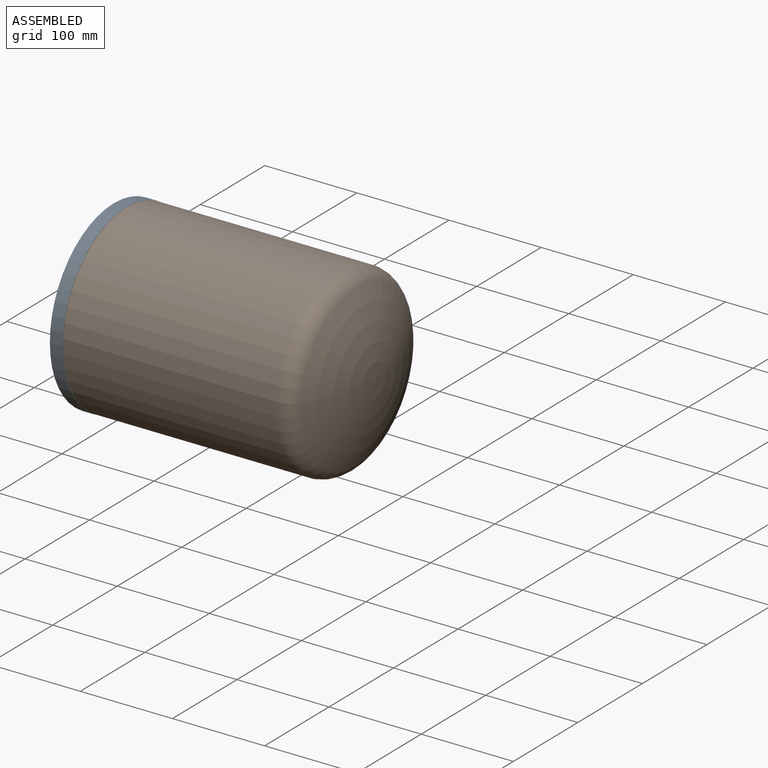
[diagram: assembled view]
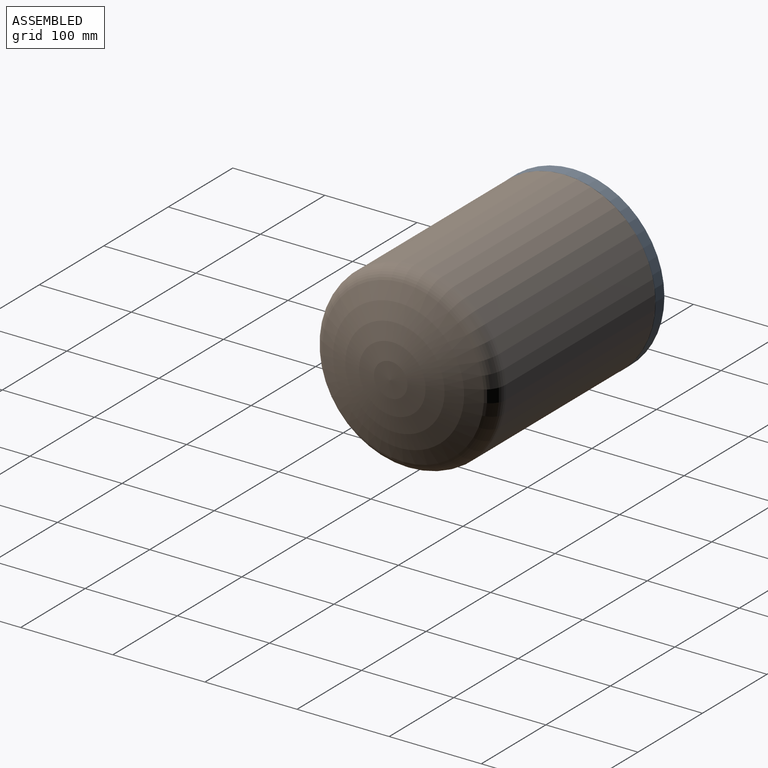
[diagram: assembled view, second angle]
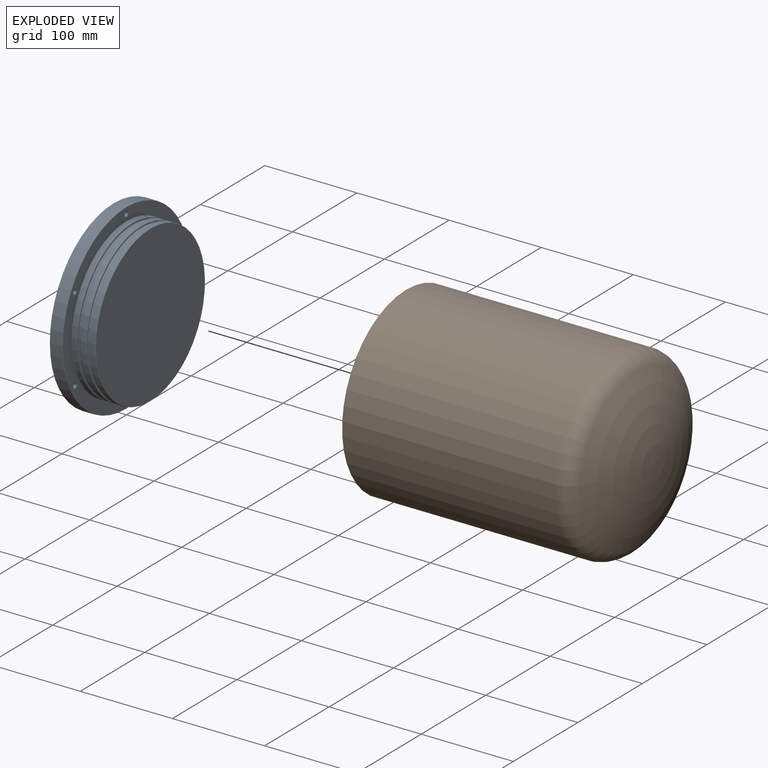
[diagram: exploded view]
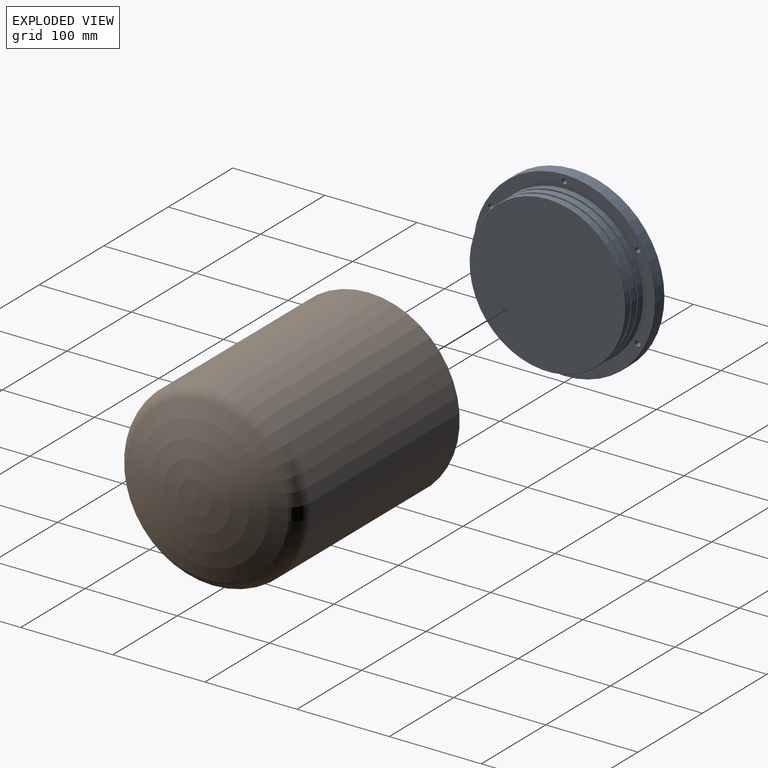
[diagram: exploded view, second angle]
ASSEMBLY  parts=2 mates=3
PART A: 43 faces, bbox 40x214.3x214.3 mm
  f0: cone r=2.75mm half-angle=45deg, axis (-1,0,0), area 11.1mm2, adj f2,f25
  f1: cone r=2.25mm half-angle=45deg, axis (1,0,0), area 11.1mm2, adj f2,f21
  f2: cylinder r=2.25mm len=13mm, axis (-1,0,0), area 183.8mm2, adj f0,f1
  f3: cone r=2.75mm half-angle=45deg, axis (-1,0,0), area 11.1mm2, adj f5,f25
  f4: cone r=2.25mm half-angle=45deg, axis (1,0,0), area 11.1mm2, adj f5,f21
  f5: cylinder r=2.25mm len=13mm, axis (-1,0,0), area 183.8mm2, adj f3,f4
  f6: cone r=2.75mm half-angle=45deg, axis (-1,0,0), area 11.1mm2, adj f8,f25
  f7: cone r=2.25mm half-angle=45deg, axis (1,0,0), area 11.1mm2, adj f8,f21
  f8: cylinder r=2.25mm len=13mm, axis (-1,0,0), area 183.8mm2, adj f6,f7
  f9: cone r=2.75mm half-angle=45deg, axis (-1,0,0), area 11.1mm2, adj f11,f25
  f10: cone r=2.25mm half-angle=45deg, axis (1,0,0), area 11.1mm2, adj f11,f21
  f11: cylinder r=2.25mm len=13mm, axis (-1,0,0), area 183.8mm2, adj f9,f10
  f12: cone r=2.75mm half-angle=45deg, axis (-1,0,0), area 11.1mm2, adj f14,f25
  f13: cone r=2.25mm half-angle=45deg, axis (1,0,0), area 11.1mm2, adj f14,f21
  f14: cylinder r=2.25mm len=13mm, axis (-1,0,0), area 183.8mm2, adj f12,f13
  f15: cylinder r=82.8mm len=165.6mm, axis (1,0,0), area 1368.9mm2, adj f16,f39
  f16: torus R=83.2mm, axis (1,0,0), area 316.5mm2, adj f15,f17
  f17: cone r=84.42mm half-angle=87deg, axis (-1,0,0), area 654.8mm2, adj f16,f18
  f18: torus R=84.4mm, axis (1,0,0), area 323.1mm2, adj f17,f19
  f19: cylinder r=84.8mm len=169.6mm, axis (1,0,0), area 2888.1mm2, adj f18,f20
  f20: torus R=85.2mm, axis (1,0,0), area 335.4mm2, adj f19,f21
  f21: plane 197.2x197.2mm, normal (1,0,0), area 7594.9mm2, adj f1,f4,f7,f10,f13,f20,f22,f41
  f22: torus R=98.6mm, axis (1,0,0), area 390.3mm2, adj f21,f23
  f23: cylinder r=99mm len=198mm, axis (1,0,0), area 8210.9mm2, adj f22,f24
  f24: torus R=98.6mm, axis (1,0,0), area 390.3mm2, adj f23,f25
  f25: plane 197.2x197.2mm, normal (-1,0,0), area 30399.9mm2, adj f0,f3,f6,f9,f12,f24,f42
  f26: plane 168.8x168.8mm, normal (1,0,0), area 22378.7mm2, adj f27
  f27: torus R=84.4mm, axis (1,0,0), area 334.2mm2, adj f26,f28
  f28: cylinder r=84.8mm len=169.6mm, axis (1,0,0), area 2888.1mm2, adj f27,f29
  f29: torus R=84.4mm, axis (1,0,0), area 323.1mm2, adj f28,f30
  f30: cone r=83.18mm half-angle=87deg, axis (1,0,0), area 654.8mm2, adj f29,f31
  f31: torus R=83.2mm, axis (1,0,0), area 316.5mm2, adj f30,f32
  f32: cylinder r=82.8mm len=165.6mm, axis (1,0,0), area 1368.9mm2, adj f31,f33
  f33: torus R=83.2mm, axis (1,0,0), area 316.5mm2, adj f32,f34
  f34: cone r=84.42mm half-angle=87deg, axis (-1,0,0), area 654.8mm2, adj f33,f35
  f35: torus R=84.4mm, axis (1,0,0), area 323.1mm2, adj f34,f36
  f36: cylinder r=84.8mm len=169.6mm, axis (1,0,0), area 3005.5mm2, adj f35,f37
  f37: torus R=84.4mm, axis (1,0,0), area 323.1mm2, adj f36,f38
  f38: cone r=83.18mm half-angle=87deg, axis (1,0,0), area 654.8mm2, adj f37,f39
  f39: torus R=83.2mm, axis (1,0,0), area 316.5mm2, adj f15,f38
  f40: cylinder r=2.25mm len=13mm, axis (-1,0,0), area 183.8mm2, adj f41,f42
  f41: cone r=2.25mm half-angle=45deg, axis (1,0,0), area 11.1mm2, adj f21,f40
  f42: cone r=2.75mm half-angle=45deg, axis (-1,0,0), area 11.1mm2, adj f25,f40
PART B: 29 faces, bbox 270x214.3x214.3 mm
  f0: cone r=2.25mm half-angle=45deg, axis (-1,0,0), area 11.1mm2, adj f2,f18
  f1: cone r=0mm half-angle=59deg, axis (-1,0,0), area 18.6mm2, adj f2
  f2: cylinder r=2.25mm len=11.5mm, axis (-1,0,0), area 162.6mm2, adj f0,f1
  f3: cone r=2.25mm half-angle=45deg, axis (-1,0,0), area 11.1mm2, adj f5,f18
  f4: cone r=0mm half-angle=59deg, axis (-1,0,0), area 18.6mm2, adj f5
  f5: cylinder r=2.25mm len=11.5mm, axis (-1,0,0), area 162.6mm2, adj f3,f4
  f6: cone r=2.25mm half-angle=45deg, axis (-1,0,0), area 11.1mm2, adj f8,f18
  f7: cone r=0mm half-angle=59deg, axis (-1,0,0), area 18.6mm2, adj f8
  f8: cylinder r=2.25mm len=11.5mm, axis (-1,0,0), area 162.6mm2, adj f6,f7
  f9: cone r=2.25mm half-angle=45deg, axis (-1,0,0), area 11.1mm2, adj f11,f18
  f10: cone r=0mm half-angle=59deg, axis (-1,0,0), area 18.6mm2, adj f11
  f11: cylinder r=2.25mm len=11.5mm, axis (-1,0,0), area 162.6mm2, adj f9,f10
  f12: cone r=2.25mm half-angle=45deg, axis (-1,0,0), area 11.1mm2, adj f14,f18
  f13: cone r=0mm half-angle=59deg, axis (-1,0,0), area 18.6mm2, adj f14
  f14: cylinder r=2.25mm len=11.5mm, axis (-1,0,0), area 162.6mm2, adj f12,f13
  f15: sphere r=200mm, area 25499.3mm2, adj f16
  f16: torus R=79mm, axis (-1,0,0), area 13341.6mm2, adj f15,f17
  f17: cylinder r=99mm len=231.24mm, axis (-1,0,0), area 143837.9mm2, adj f16,f25
  f18: plane 197x197mm, normal (-1,0,0), area 7187.6mm2, adj f0,f3,f6,f9,f12,f19,f25,f28
  f19: torus R=85.84mm, axis (-1,0,0), area 281.7mm2, adj f18,f20
  f20: cone r=85.46mm half-angle=15deg, axis (-1,0,0), area 916.3mm2, adj f19,f21
  f21: torus R=85.4mm, axis (-1,0,0), area 55.9mm2, adj f20,f22
  f22: cylinder r=85mm len=227.17mm, axis (-1,0,0), area 121323.4mm2, adj f21,f23
  f23: torus R=75mm, axis (-1,0,0), area 5896.1mm2, adj f22,f24
  f24: sphere r=186mm, area 20724.6mm2, adj f23
  f25: cone r=98.5mm half-angle=45deg, axis (1,0,0), area 438.7mm2, adj f17,f18
  f26: cone r=0mm half-angle=59deg, axis (-1,0,0), area 18.6mm2, adj f27
  f27: cylinder r=2.25mm len=11.5mm, axis (-1,0,0), area 162.6mm2, adj f26,f28
  f28: cone r=2.25mm half-angle=45deg, axis (-1,0,0), area 11.1mm2, adj f18,f27
PLACE A rot(axis=(-1,0,0),60deg) t=(-14,0,0)mm
PLACE B at identity fixed
MATE cylindrical B.f7 <-> A.f9  axis (-1,0,0) through (0.5,0,-92)mm
MATE planar B.f12 <-> A.f15  axis (-1,0,0) through (0,79.67,46)mm
MATE cylindrical B.f20 <-> A.f15  axis (-1,0,0) through (116.12,0,0)mm
